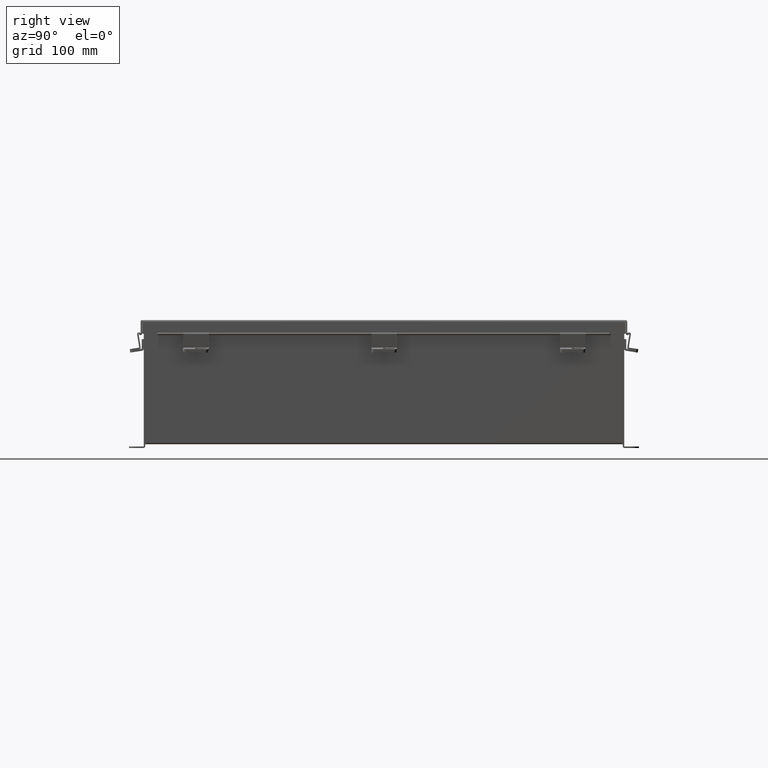
[diagram: clean part render]
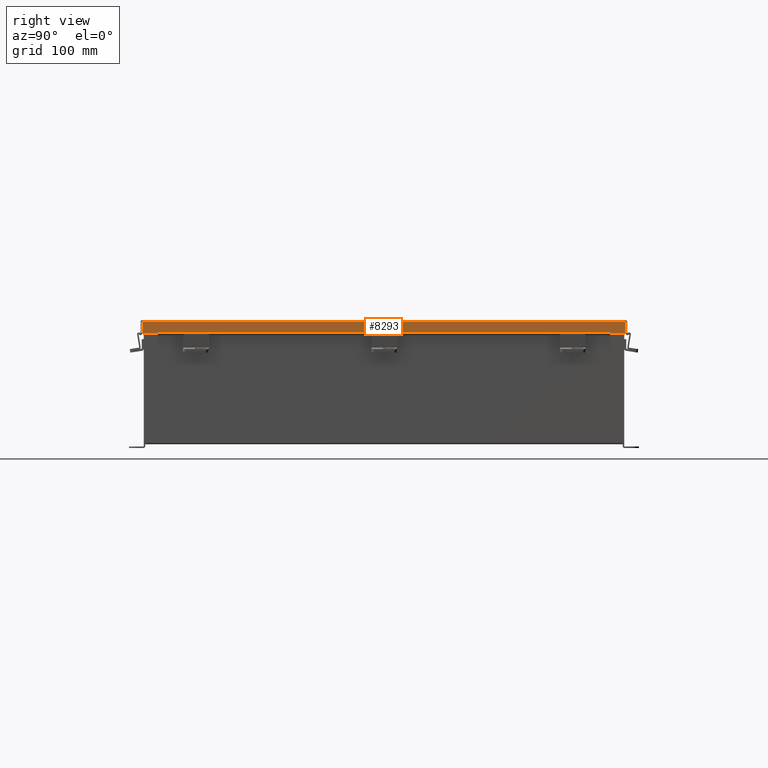
[diagram: same view with one face highlighted and labeled with its STEP entity id]
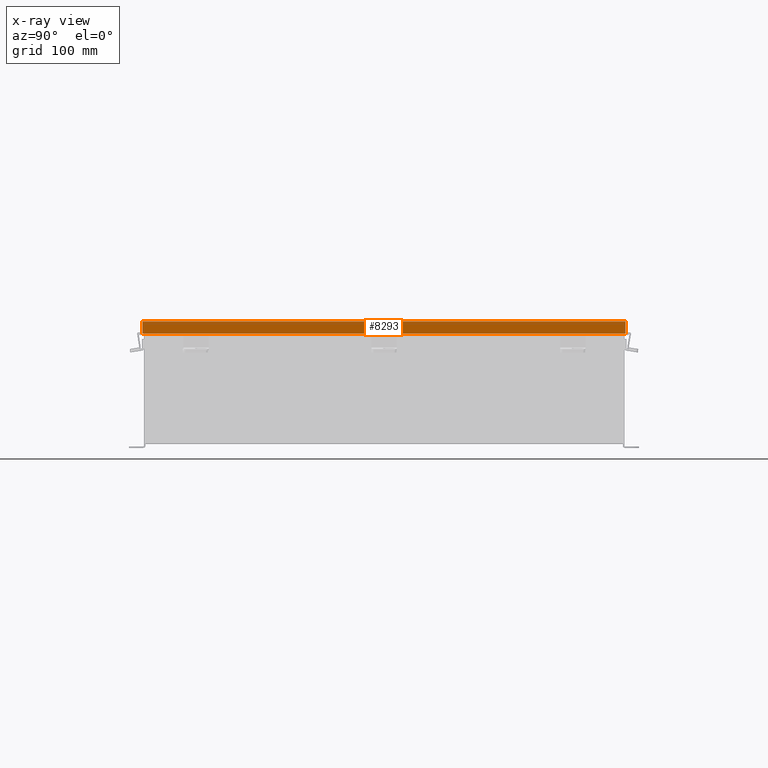
[diagram: x-ray of the same camera — body ghosted, the highlighted face saturated]
A machine part, right view. The second image highlights one B-rep face of the part: STEP entity #8293.
The next image is the same camera in x-ray: the body ghosted, the highlighted face saturated — about 0% of this face is hidden behind the body in this view.
In plain terms, the highlighted planar face has unit normal (-1, 0, -0).
Its self-contained STEP definition (entity closure, byte-faithful):
#131 = DIRECTION ( 'NONE',  ( -3.569293475308537100E-015, 1.846427556282924300E-029, 1.000000000000000000 ) ) ;
#233 = DIRECTION ( 'NONE',  ( 4.205955132072044700E-013, 1.401985044024007700E-013, -1.000000000000000000 ) ) ;
#335 = VERTEX_POINT ( 'NONE', #2026 ) ;
#347 = EDGE_CURVE ( 'NONE', #7639, #8763, #5838, .T. ) ;
#421 = ORIENTED_EDGE ( 'NONE', *, *, #7328, .T. ) ;
#609 = CARTESIAN_POINT ( 'NONE',  ( -12.15625000000003000, 12.07447893218813200, 0.0000000000000000000 ) ) ;
#793 = ORIENTED_EDGE ( 'NONE', *, *, #347, .F. ) ;
#800 = ORIENTED_EDGE ( 'NONE', *, *, #7762, .F. ) ;
#931 = LINE ( 'NONE', #9373, #4880 ) ;
#962 = DIRECTION ( 'NONE',  ( -2.803970088047903700E-013, -9.813895308167636000E-013, 1.000000000000000000 ) ) ;
#1289 = VECTOR ( 'NONE', #233, 39.37007874015748100 ) ;
#1827 = CARTESIAN_POINT ( 'NONE',  ( -12.15625000000003000, -12.07447893218813600, 0.01300000000000010700 ) ) ;
#2026 = CARTESIAN_POINT ( 'NONE',  ( -12.15625000000003400, -11.32447893218813600, 0.6123000000000005100 ) ) ;
#2137 = CARTESIAN_POINT ( 'NONE',  ( -12.15625000000003400, 11.32447893218813200, 0.6123000000000015100 ) ) ;
#2775 = EDGE_CURVE ( 'NONE', #5036, #4326, #4269, .T. ) ;
#2816 = CARTESIAN_POINT ( 'NONE',  ( -12.15625000000003400, 11.32447893218813200, 0.6123000000000015100 ) ) ;
#2884 = AXIS2_PLACEMENT_3D ( 'NONE', #5765, #9422, #8016 ) ;
#2983 = DIRECTION ( 'NONE',  ( -3.166671605124527300E-030, -1.000000000000000000, -1.853823127269378000E-029 ) ) ;
#3161 = CARTESIAN_POINT ( 'NONE',  ( -12.15625000000003200, 0.0000000000000000000, 0.6122999999999994000 ) ) ;
#3554 = CARTESIAN_POINT ( 'NONE',  ( -12.15625000000003000, 11.32447893218812700, 0.5967115427318793200 ) ) ;
#3866 = VECTOR ( 'NONE', #962, 39.37007874015748100 ) ;
#4005 = EDGE_CURVE ( 'NONE', #6122, #4428, #9279, .T. ) ;
#4141 = DIRECTION ( 'NONE',  ( 3.166671605124525800E-030, 1.000000000000000000, 1.853823127269377700E-029 ) ) ;
#4155 = LINE ( 'NONE', #3161, #10082 ) ;
#4249 = ORIENTED_EDGE ( 'NONE', *, *, #4968, .F. ) ;
#4269 = LINE ( 'NONE', #5450, #7310 ) ;
#4277 = ORIENTED_EDGE ( 'NONE', *, *, #4005, .F. ) ;
#4326 = VERTEX_POINT ( 'NONE', #7466 ) ;
#4428 = VERTEX_POINT ( 'NONE', #9527 ) ;
#4430 = DIRECTION ( 'NONE',  ( 3.166671605124525800E-030, 1.000000000000000000, 1.853823127269377700E-029 ) ) ;
#4747 = VERTEX_POINT ( 'NONE', #8988 ) ;
#4880 = VECTOR ( 'NONE', #4141, 39.37007874015748100 ) ;
#4962 = VECTOR ( 'NONE', #4430, 39.37007874015748100 ) ;
#4968 = EDGE_CURVE ( 'NONE', #4747, #335, #6429, .T. ) ;
#5001 = ORIENTED_EDGE ( 'NONE', *, *, #2775, .T. ) ;
#5036 = VERTEX_POINT ( 'NONE', #1827 ) ;
#5351 = EDGE_LOOP ( 'NONE', ( #793, #421, #4277, #8881, #5001, #6431, #4249, #800 ) ) ;
#5450 = CARTESIAN_POINT ( 'NONE',  ( -12.15625000000003000, -12.07447893218813600, -4.370956789862821100E-014 ) ) ;
#5738 = CARTESIAN_POINT ( 'NONE',  ( -12.15625000000003000, 12.15624999999999800, 0.01300000000000010700 ) ) ;
#5765 = CARTESIAN_POINT ( 'NONE',  ( -12.15625000000003200, 0.0000000000000000000, -4.370956789862821100E-014 ) ) ;
#5838 = LINE ( 'NONE', #2137, #1289 ) ;
#6122 = VERTEX_POINT ( 'NONE', #6529 ) ;
#6429 = LINE ( 'NONE', #9359, #3866 ) ;
#6431 = ORIENTED_EDGE ( 'NONE', *, *, #7175, .T. ) ;
#6529 = CARTESIAN_POINT ( 'NONE',  ( -12.15625000000003000, 12.07447893218813200, 0.01300000000000010700 ) ) ;
#6690 = LINE ( 'NONE', #3554, #8511 ) ;
#7046 = LINE ( 'NONE', #5738, #4962 ) ;
#7175 = EDGE_CURVE ( 'NONE', #4326, #335, #931, .T. ) ;
#7310 = VECTOR ( 'NONE', #9444, 39.37007874015748100 ) ;
#7328 = EDGE_CURVE ( 'NONE', #7639, #4428, #4155, .T. ) ;
#7457 = DIRECTION ( 'NONE',  ( 3.166671605124525800E-030, 1.000000000000000000, 1.853823127269377700E-029 ) ) ;
#7466 = CARTESIAN_POINT ( 'NONE',  ( -12.15625000000003400, -12.07447893218813600, 0.6123000000000005100 ) ) ;
#7639 = VERTEX_POINT ( 'NONE', #2816 ) ;
#7762 = EDGE_CURVE ( 'NONE', #8763, #4747, #6690, .T. ) ;
#8016 = DIRECTION ( 'NONE',  ( 3.569293475308537100E-015, -1.846427556282924000E-029, -1.000000000000000000 ) ) ;
#8293 = ADVANCED_FACE ( 'NONE', ( #9200 ), #10067, .F. ) ;
#8511 = VECTOR ( 'NONE', #2983, 39.37007874015748100 ) ;
#8574 = EDGE_CURVE ( 'NONE', #5036, #6122, #7046, .T. ) ;
#8763 = VERTEX_POINT ( 'NONE', #9894 ) ;
#8881 = ORIENTED_EDGE ( 'NONE', *, *, #8574, .F. ) ;
#8988 = CARTESIAN_POINT ( 'NONE',  ( -12.15625000000003400, -11.32447893218812300, 0.5967115427318782100 ) ) ;
#9200 = FACE_OUTER_BOUND ( 'NONE', #5351, .T. ) ;
#9279 = LINE ( 'NONE', #609, #9409 ) ;
#9359 = CARTESIAN_POINT ( 'NONE',  ( -12.15625000000003000, -11.32447893218812300, 0.5967115427318782100 ) ) ;
#9373 = CARTESIAN_POINT ( 'NONE',  ( -12.15625000000003200, 0.0000000000000000000, 0.6122999999999994000 ) ) ;
#9409 = VECTOR ( 'NONE', #131, 39.37007874015748100 ) ;
#9422 = DIRECTION ( 'NONE',  ( 1.000000000000000000, 3.392644796219358600E-030, 3.569293475308537100E-015 ) ) ;
#9444 = DIRECTION ( 'NONE',  ( -3.569293475308537100E-015, 1.846427556282924300E-029, 1.000000000000000000 ) ) ;
#9527 = CARTESIAN_POINT ( 'NONE',  ( -12.15625000000003400, 12.07447893218813200, 0.6123000000000005100 ) ) ;
#9894 = CARTESIAN_POINT ( 'NONE',  ( -12.15625000000003400, 11.32447893218813200, 0.5967115427318793200 ) ) ;
#10067 = PLANE ( 'NONE',  #2884 ) ;
#10082 = VECTOR ( 'NONE', #7457, 39.37007874015748100 ) ;